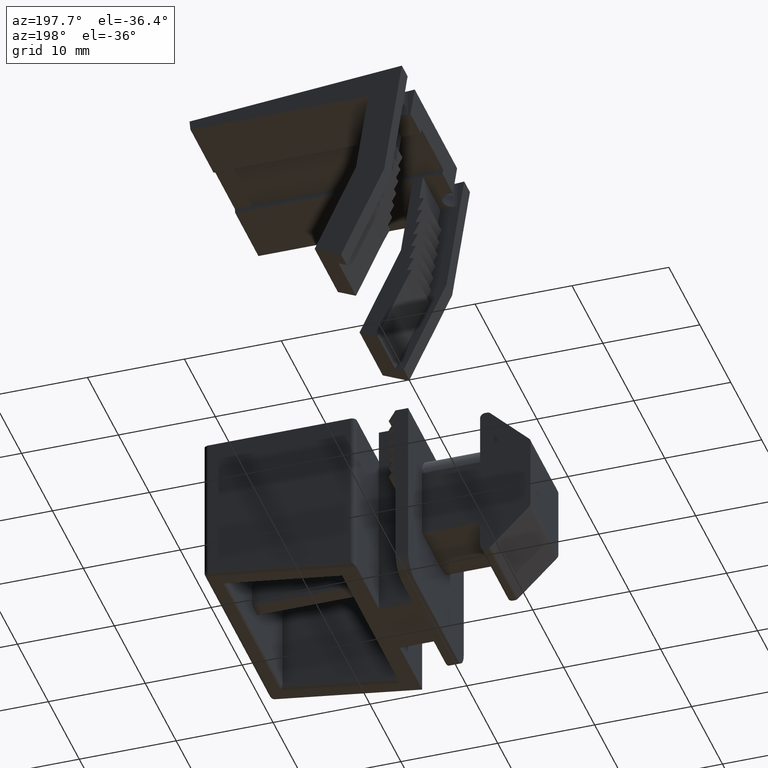
[diagram: clean part render]
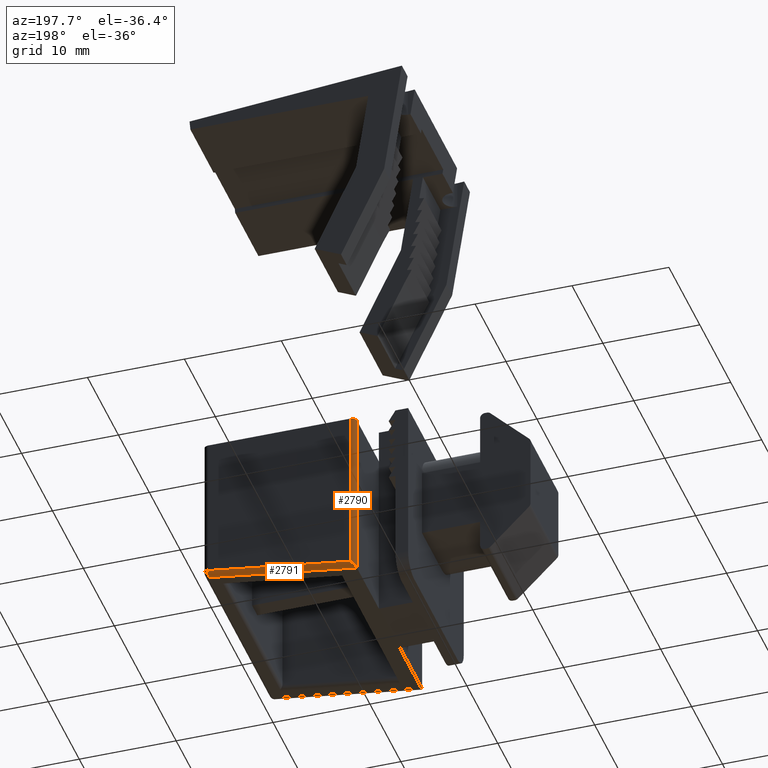
[diagram: same view with one multi-face feature highlighted, each face labeled with its STEP entity id]
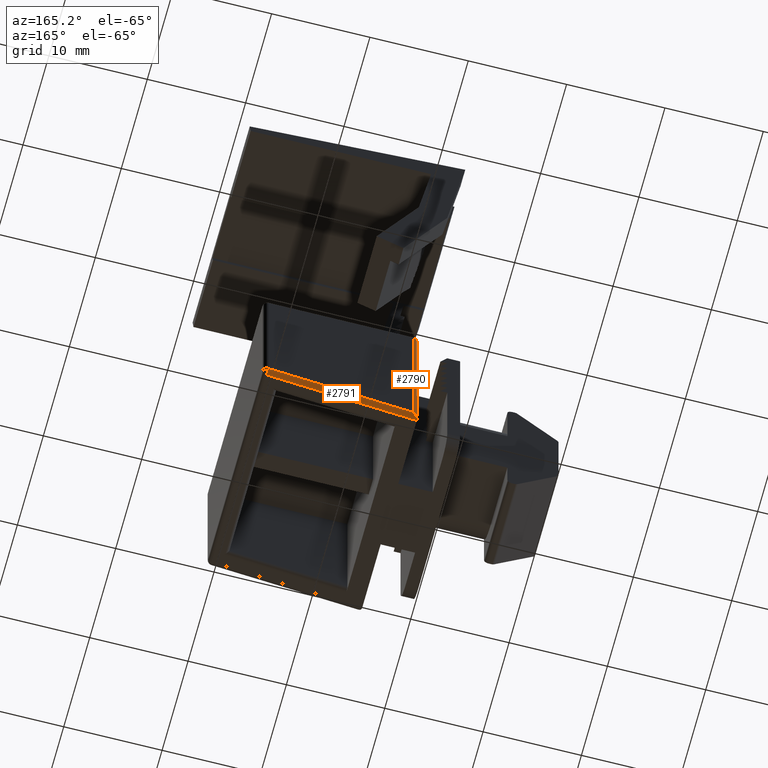
[diagram: same view with one multi-face feature highlighted, each face labeled with its STEP entity id]
A machine part, auxiliary view. The highlighted faces form ONE feature: a constant-radius fillet chain: 2 tangent blend faces with common blend radius 0.5 mm. The faces share edges in the B-rep.
A second angle (auxiliary view) of the same feature is appended — it is thin or edge-on in the first view.
Their STEP definitions:
[1] entity #2791 (Cylinder):
#164=FACE_OUTER_BOUND('',#314,.T.);
#314=EDGE_LOOP('',(#1969,#1970,#1971,#1972));
#463=CIRCLE('',#2952,0.5);
#494=ELLIPSE('',#2956,0.76469660468617,0.5);
#504=LINE('',#3924,#877);
#514=LINE('',#3958,#887);
#877=VECTOR('',#3158,15.4354885650573);
#887=VECTOR('',#3194,14.8569033101306);
#1254=VERTEX_POINT('',#3922);
#1255=VERTEX_POINT('',#3923);
#1263=VERTEX_POINT('',#3943);
#1266=VERTEX_POINT('',#3954);
#1528=EDGE_CURVE('',#1254,#1255,#504,.T.);
#1540=EDGE_CURVE('',#1263,#1254,#463,.F.);
#1545=EDGE_CURVE('',#1266,#1255,#494,.T.);
#1546=EDGE_CURVE('',#1266,#1263,#514,.T.);
#1969=ORIENTED_EDGE('',*,*,#1546,.T.);
#1970=ORIENTED_EDGE('',*,*,#1540,.T.);
#1971=ORIENTED_EDGE('',*,*,#1528,.T.);
#1972=ORIENTED_EDGE('',*,*,#1545,.F.);
#2766=CYLINDRICAL_SURFACE('',#2957,0.5);
#2791=ADVANCED_FACE('',(#164),#2766,.T.);
#2952=AXIS2_PLACEMENT_3D('',#3946,#3179,#3180);
#2956=AXIS2_PLACEMENT_3D('',#3956,#3190,#3191);
#2957=AXIS2_PLACEMENT_3D('',#3957,#3192,#3193);
#3158=DIRECTION('',(-0.989439030001384,0.,0.144949666815489));
#3179=DIRECTION('center_axis',(0.989439030001385,0.,-0.144949666815482));
#3180=DIRECTION('ref_axis',(0.,-1.,0.));
#3190=DIRECTION('center_axis',(-0.756620666786035,0.,-0.653854086621974));
#3191=DIRECTION('ref_axis',(-0.653854086621974,0.,0.756620666786035));
#3192=DIRECTION('center_axis',(-0.989439030001383,0.,0.144949666815489));
#3193=DIRECTION('ref_axis',(0.102494892335964,-0.707106781186551,0.699639047684615));
#3194=DIRECTION('',(0.989439030001384,0.,-0.144949666815489));
#3922=CARTESIAN_POINT('',(20.0724748334077,-10.5,17.2626310753606));
#3923=CARTESIAN_POINT('',(4.8,-10.5,19.5));
#3924=CARTESIAN_POINT('',(9.19073855337558,-10.5,18.8567707851743));
#3943=CARTESIAN_POINT('',(20.,-11.,16.76791156036));
#3946=CARTESIAN_POINT('Origin',(20.,-10.5,16.76791156036));
#3954=CARTESIAN_POINT('',(5.3,-11.,18.9214147450733));
#3956=CARTESIAN_POINT('Origin',(5.3,-10.5,18.9214147450733));
#3957=CARTESIAN_POINT('Origin',(9.11826371996784,-10.5,18.3620512701736));
#3958=CARTESIAN_POINT('',(9.11826371996784,-11.,18.3620512701736));
[2] entity #2790 (Cylinder):
#163=FACE_OUTER_BOUND('',#313,.T.);
#313=EDGE_LOOP('',(#1965,#1966,#1967,#1968));
#464=CIRCLE('',#2955,0.5);
#494=ELLIPSE('',#2956,0.76469660468617,0.5);
#512=LINE('',#3951,#885);
#513=LINE('',#3955,#886);
#885=VECTOR('',#3186,18.);
#886=VECTOR('',#3189,17.4214147450733);
#1255=VERTEX_POINT('',#3923);
#1264=VERTEX_POINT('',#3950);
#1265=VERTEX_POINT('',#3952);
#1266=VERTEX_POINT('',#3954);
#1542=EDGE_CURVE('',#1255,#1264,#512,.T.);
#1543=EDGE_CURVE('',#1264,#1265,#464,.T.);
#1544=EDGE_CURVE('',#1265,#1266,#513,.T.);
#1545=EDGE_CURVE('',#1266,#1255,#494,.T.);
#1965=ORIENTED_EDGE('',*,*,#1542,.T.);
#1966=ORIENTED_EDGE('',*,*,#1543,.T.);
#1967=ORIENTED_EDGE('',*,*,#1544,.T.);
#1968=ORIENTED_EDGE('',*,*,#1545,.T.);
#2765=CYLINDRICAL_SURFACE('',#2954,0.5);
#2790=ADVANCED_FACE('',(#163),#2765,.T.);
#2954=AXIS2_PLACEMENT_3D('',#3949,#3184,#3185);
#2955=AXIS2_PLACEMENT_3D('',#3953,#3187,#3188);
#2956=AXIS2_PLACEMENT_3D('',#3956,#3190,#3191);
#3184=DIRECTION('center_axis',(0.,0.,-1.));
#3185=DIRECTION('ref_axis',(-0.707106781186546,-0.707106781186549,0.));
#3186=DIRECTION('',(0.,0.,-1.));
#3187=DIRECTION('center_axis',(-3.53574211664063E-17,0.,1.));
#3188=DIRECTION('ref_axis',(-0.707106781186546,-0.707106781186549,0.));
#3189=DIRECTION('',(0.,0.,1.));
#3190=DIRECTION('center_axis',(-0.756620666786035,0.,-0.653854086621974));
#3191=DIRECTION('ref_axis',(-0.653854086621974,0.,0.756620666786035));
#3923=CARTESIAN_POINT('',(4.8,-10.5,19.5));
#3949=CARTESIAN_POINT('Origin',(5.3,-10.5,5.73344712558717));
#3950=CARTESIAN_POINT('',(4.8,-10.5,1.5));
#3951=CARTESIAN_POINT('',(4.8,-10.5,5.73344712558717));
#3952=CARTESIAN_POINT('',(5.3,-11.,1.5));
#3953=CARTESIAN_POINT('Origin',(5.3,-10.5,1.5));
#3954=CARTESIAN_POINT('',(5.3,-11.,18.9214147450733));
#3955=CARTESIAN_POINT('',(5.3,-11.,5.73344712558717));
#3956=CARTESIAN_POINT('Origin',(5.3,-10.5,18.9214147450733));